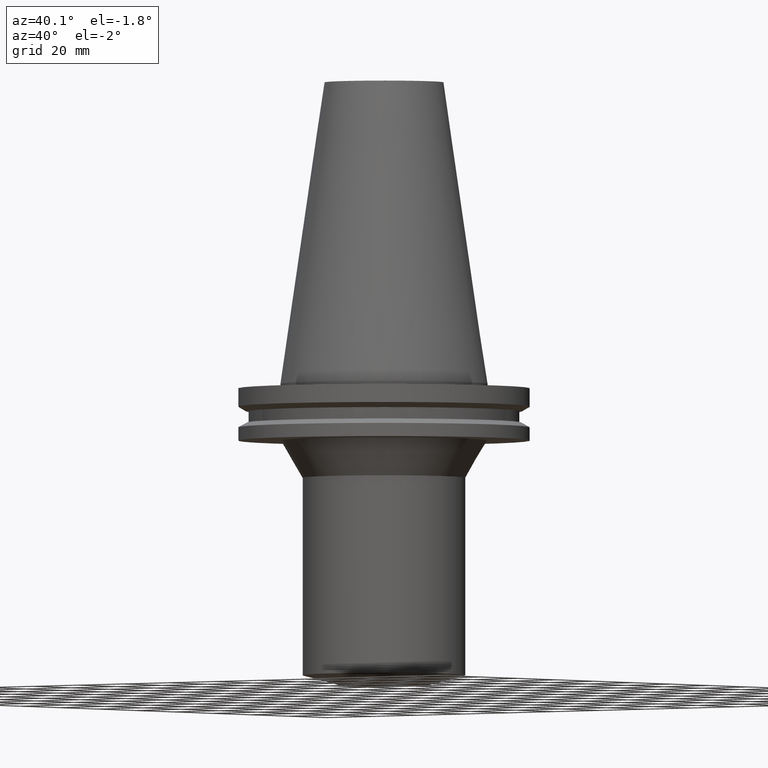
[diagram: clean part render]
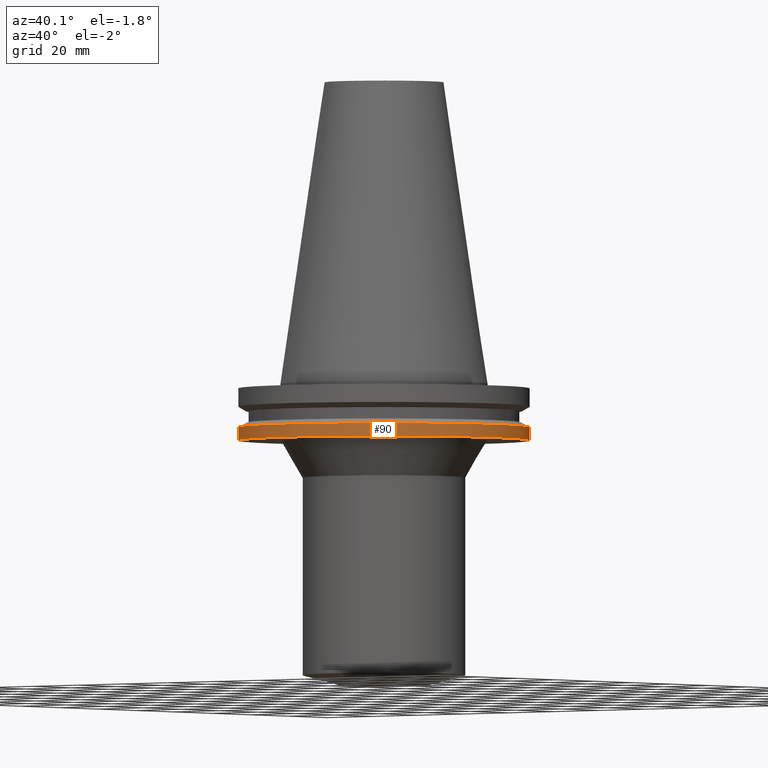
[diagram: same view with one face highlighted and labeled with its STEP entity id]
A machine part, auxiliary view. The second image highlights one B-rep face of the part: STEP entity #90.
In plain terms, the highlighted cylindrical surface (bore or boss wall) has radius 49.2125 mm, axis along (0, 0, -1).
Its self-contained STEP definition (entity closure, byte-faithful):
#68=EDGE_CURVE('Unnamed[1]',#172,#172,#173,.T.);
#70=EDGE_CURVE('Unnamed[1]',#175,#175,#176,.T.);
#90=ADVANCED_FACE('Unnamed[1]',(#206,#207),#208,.T.);
#172=VERTEX_POINT('',#310);
#173=CIRCLE('',#311,49.2125);
#175=VERTEX_POINT('',#314);
#176=CIRCLE('',#315,49.2125);
#206=FACE_BOUND('',#352,.T.);
#207=FACE_BOUND('',#353,.T.);
#208=CYLINDRICAL_SURFACE('',#354,49.2125);
#310=CARTESIAN_POINT('',(8.96819062732941E-016,49.2125,-14.64616677));
#311=AXIS2_PLACEMENT_3D('',#463,#464,#465);
#314=CARTESIAN_POINT('',(1.16647607618785E-015,49.2125,-19.05));
#315=AXIS2_PLACEMENT_3D('',#466,#467,#468);
#352=EDGE_LOOP('',(#502));
#353=EDGE_LOOP('',(#503));
#354=AXIS2_PLACEMENT_3D('',#504,#505,#506);
#463=CARTESIAN_POINT('',(8.96819062732942E-016,1.79363812546588E-015,-14.64616677));
#464=DIRECTION('',(6.12323399573677E-017,1.22464679914777E-016,-1.0));
#465=DIRECTION('',(-1.23259516440769E-032,1.0,1.22464679914777E-016));
#466=CARTESIAN_POINT('',(1.16647607618785E-015,2.33295215237571E-015,-19.05));
#467=DIRECTION('',(6.12323399573677E-017,1.22464679914777E-016,-1.0));
#468=DIRECTION('',(-1.23259516440769E-032,1.0,1.22464679914777E-016));
#502=ORIENTED_EDGE('',*,*,#70,.F.);
#503=ORIENTED_EDGE('',*,*,#68,.T.);
#504=CARTESIAN_POINT('',(1.0316475694604E-015,2.0632951389208E-015,-16.848083385));
#505=DIRECTION('',(6.12323399573677E-017,1.22464679914777E-016,-1.0));
#506=DIRECTION('',(-1.23259516440769E-032,1.0,1.22464679914777E-016));